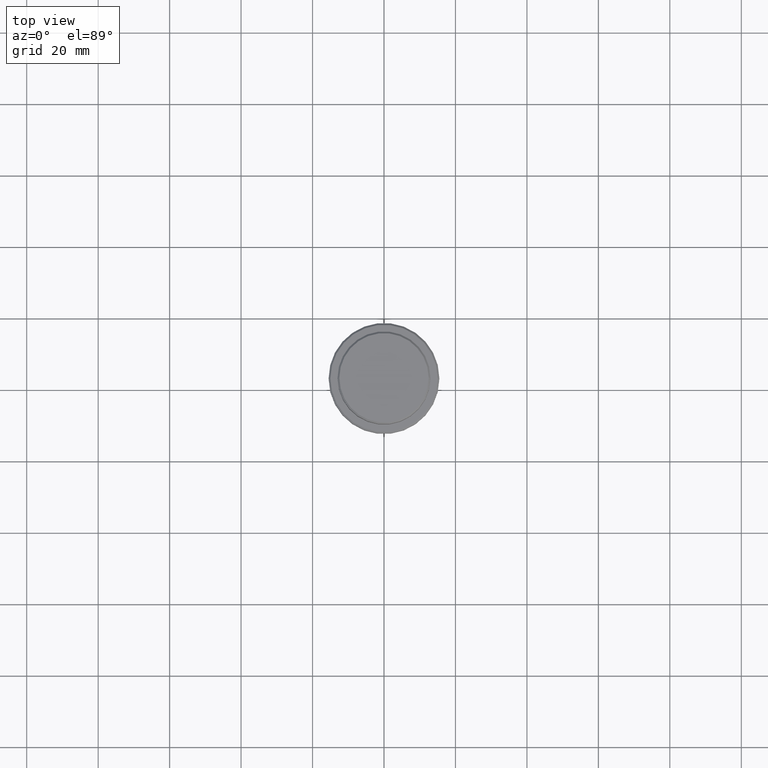
[diagram: clean part render]
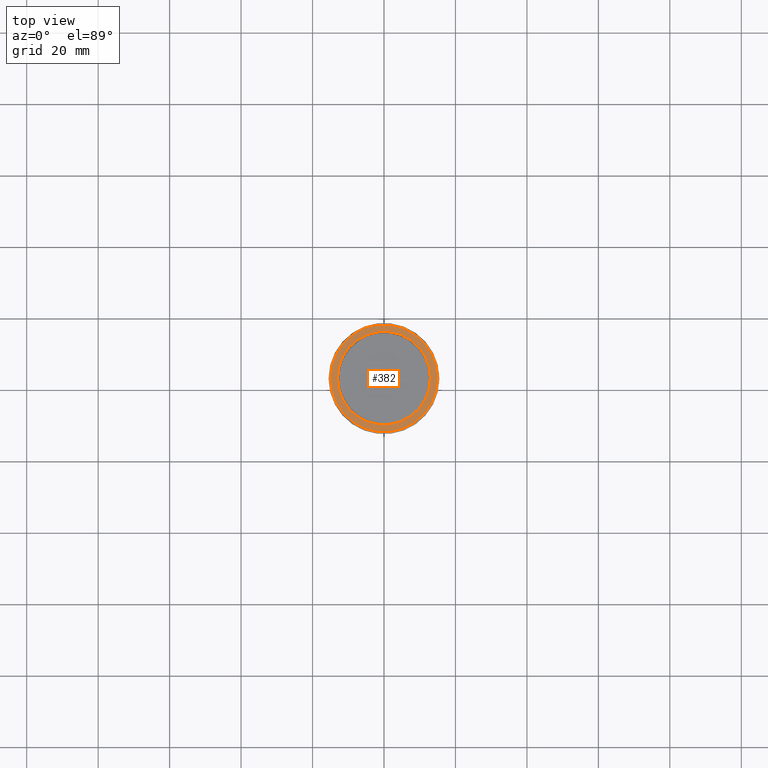
[diagram: same view with one face highlighted and labeled with its STEP entity id]
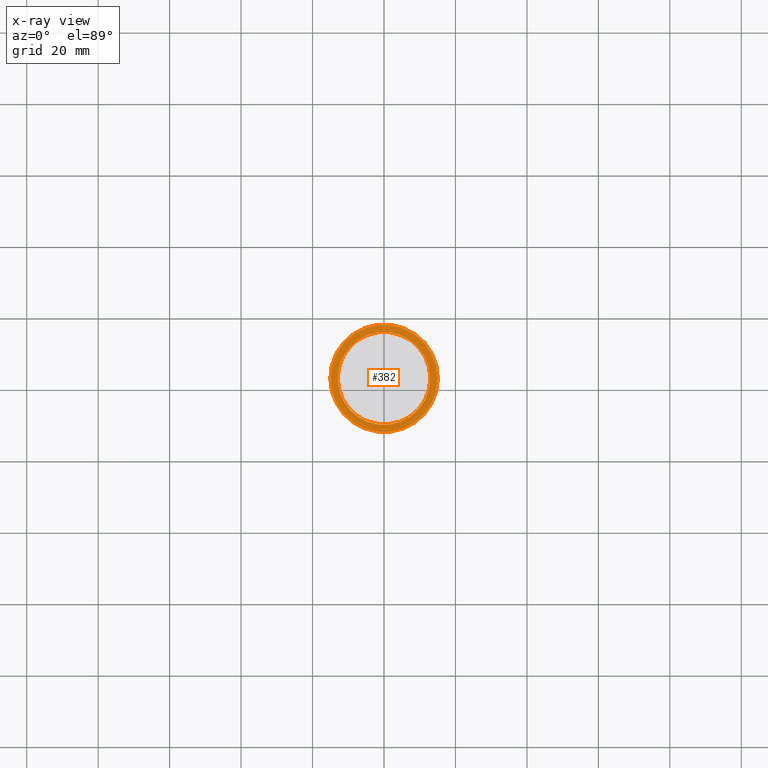
[diagram: x-ray of the same camera — body ghosted, the highlighted face saturated]
A machine part, top view. The second image highlights one B-rep face of the part: STEP entity #382.
The next image is the same camera in x-ray: the body ghosted, the highlighted face saturated — about 0% of this face is hidden behind the body in this view.
In plain terms, the highlighted planar face has unit normal (0, -0, 1).
Its self-contained STEP definition (entity closure, byte-faithful):
#66 = DIRECTION ( 'NONE',  ( 1.000000000000000000, 0.000000000000000000, 0.000000000000000000 ) ) ;
#81 = DIRECTION ( 'NONE',  ( 0.000000000000000000, 0.000000000000000000, -1.000000000000000000 ) ) ;
#84 = ORIENTED_EDGE ( 'NONE', *, *, #792, .T. ) ;
#106 = CARTESIAN_POINT ( 'NONE',  ( -15.00000000000001421, 0.000000000000000000, -9.000000000000001776 ) ) ;
#185 = FACE_BOUND ( 'NONE', #442, .T. ) ;
#270 = DIRECTION ( 'NONE',  ( 1.000000000000000000, 0.000000000000000000, 0.000000000000000000 ) ) ;
#302 = CARTESIAN_POINT ( 'NONE',  ( 12.99999999999999467, 0.000000000000000000, -9.000000000000001776 ) ) ;
#313 = VERTEX_POINT ( 'NONE', #1306 ) ;
#332 = DIRECTION ( 'NONE',  ( 1.000000000000000000, 0.000000000000000000, 0.000000000000000000 ) ) ;
#382 = ADVANCED_FACE ( 'NONE', ( #1139, #185 ), #477, .T. ) ;
#402 = CARTESIAN_POINT ( 'NONE',  ( 0.000000000000000000, 12.49999999999999289, -9.000000000000001776 ) ) ;
#433 = AXIS2_PLACEMENT_3D ( 'NONE', #1272, #81, #66 ) ;
#442 = EDGE_LOOP ( 'NONE', ( #515, #491 ) ) ;
#452 = CARTESIAN_POINT ( 'NONE',  ( 0.000000000000000000, 0.000000000000000000, -9.000000000000001776 ) ) ;
#477 = PLANE ( 'NONE',  #1357 ) ;
#480 = CIRCLE ( 'NONE', #1265, 15.00000000000001421 ) ;
#491 = ORIENTED_EDGE ( 'NONE', *, *, #1258, .T. ) ;
#493 = EDGE_CURVE ( 'NONE', #1052, #874, #1021, .T. ) ;
#515 = ORIENTED_EDGE ( 'NONE', *, *, #493, .T. ) ;
#664 = AXIS2_PLACEMENT_3D ( 'NONE', #793, #1298, #332 ) ;
#677 = DIRECTION ( 'NONE',  ( -0.000000000000000000, -0.000000000000000000, 1.000000000000000000 ) ) ;
#708 = DIRECTION ( 'NONE',  ( 0.000000000000000000, 0.000000000000000000, -1.000000000000000000 ) ) ;
#713 = DIRECTION ( 'NONE',  ( 1.000000000000000000, 0.000000000000000000, 0.000000000000000000 ) ) ;
#762 = EDGE_CURVE ( 'NONE', #1374, #313, #480, .T. ) ;
#775 = EDGE_LOOP ( 'NONE', ( #1182, #84 ) ) ;
#792 = EDGE_CURVE ( 'NONE', #313, #1374, #1383, .T. ) ;
#793 = CARTESIAN_POINT ( 'NONE',  ( 0.000000000000000000, 0.000000000000000000, -9.000000000000001776 ) ) ;
#804 = CIRCLE ( 'NONE', #1266, 12.99999999999999467 ) ;
#874 = VERTEX_POINT ( 'NONE', #946 ) ;
#946 = CARTESIAN_POINT ( 'NONE',  ( -12.99999999999999467, 1.592040838891558504E-15, -9.000000000000001776 ) ) ;
#1021 = CIRCLE ( 'NONE', #433, 12.99999999999999467 ) ;
#1044 = DIRECTION ( 'NONE',  ( 0.000000000000000000, -0.000000000000000000, 1.000000000000000000 ) ) ;
#1052 = VERTEX_POINT ( 'NONE', #302 ) ;
#1139 = FACE_OUTER_BOUND ( 'NONE', #775, .T. ) ;
#1182 = ORIENTED_EDGE ( 'NONE', *, *, #762, .T. ) ;
#1258 = EDGE_CURVE ( 'NONE', #874, #1052, #804, .T. ) ;
#1265 = AXIS2_PLACEMENT_3D ( 'NONE', #452, #677, #1320 ) ;
#1266 = AXIS2_PLACEMENT_3D ( 'NONE', #1268, #708, #270 ) ;
#1268 = CARTESIAN_POINT ( 'NONE',  ( 0.000000000000000000, 0.000000000000000000, -9.000000000000001776 ) ) ;
#1272 = CARTESIAN_POINT ( 'NONE',  ( 0.000000000000000000, 0.000000000000000000, -9.000000000000001776 ) ) ;
#1298 = DIRECTION ( 'NONE',  ( -0.000000000000000000, -0.000000000000000000, 1.000000000000000000 ) ) ;
#1306 = CARTESIAN_POINT ( 'NONE',  ( 15.00000000000001421, 1.867586368699714559E-15, -9.000000000000001776 ) ) ;
#1320 = DIRECTION ( 'NONE',  ( 1.000000000000000000, 0.000000000000000000, 0.000000000000000000 ) ) ;
#1357 = AXIS2_PLACEMENT_3D ( 'NONE', #402, #1044, #713 ) ;
#1374 = VERTEX_POINT ( 'NONE', #106 ) ;
#1383 = CIRCLE ( 'NONE', #664, 15.00000000000001421 ) ;